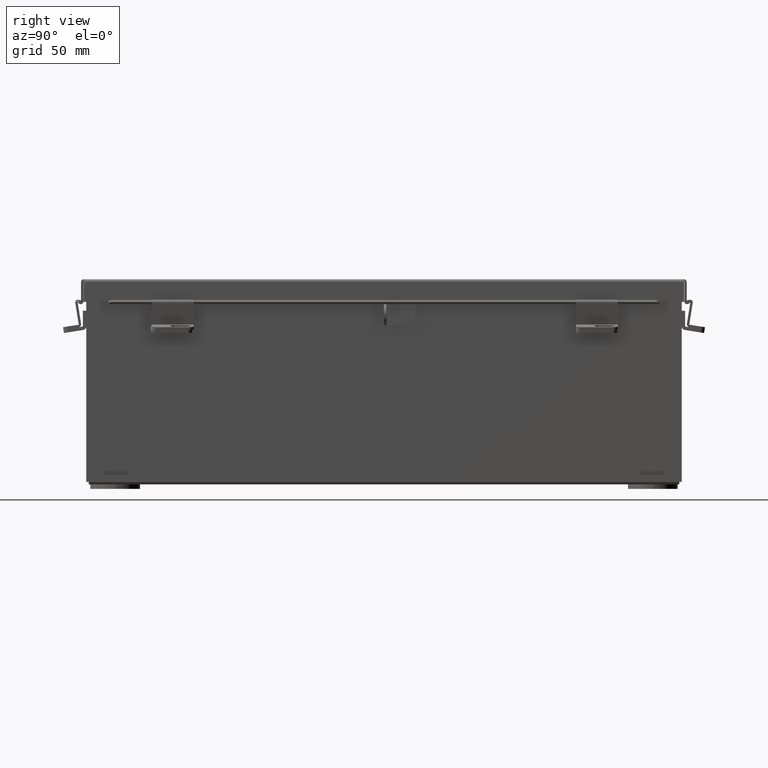
[diagram: clean part render]
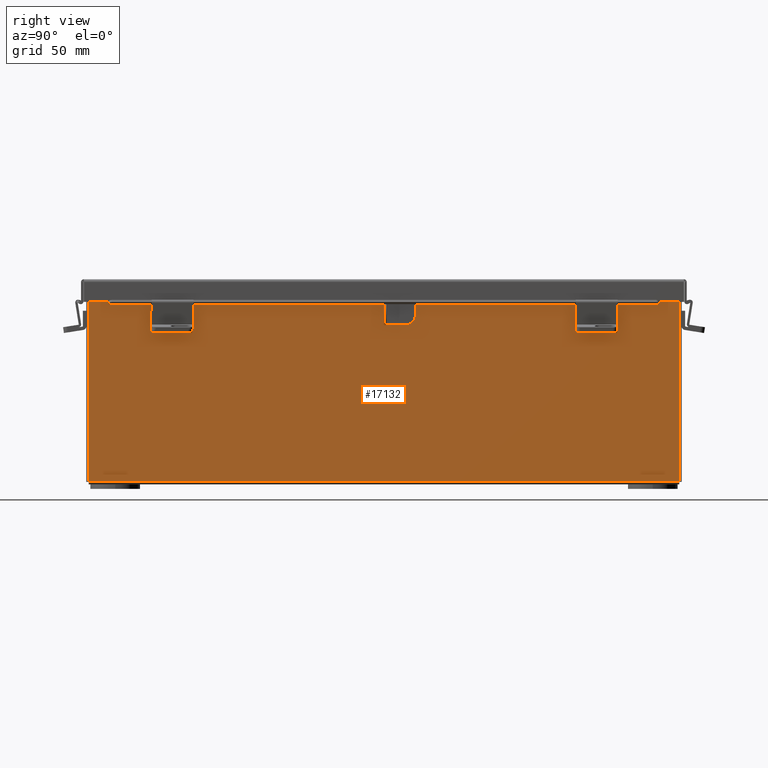
[diagram: same view with one face highlighted and labeled with its STEP entity id]
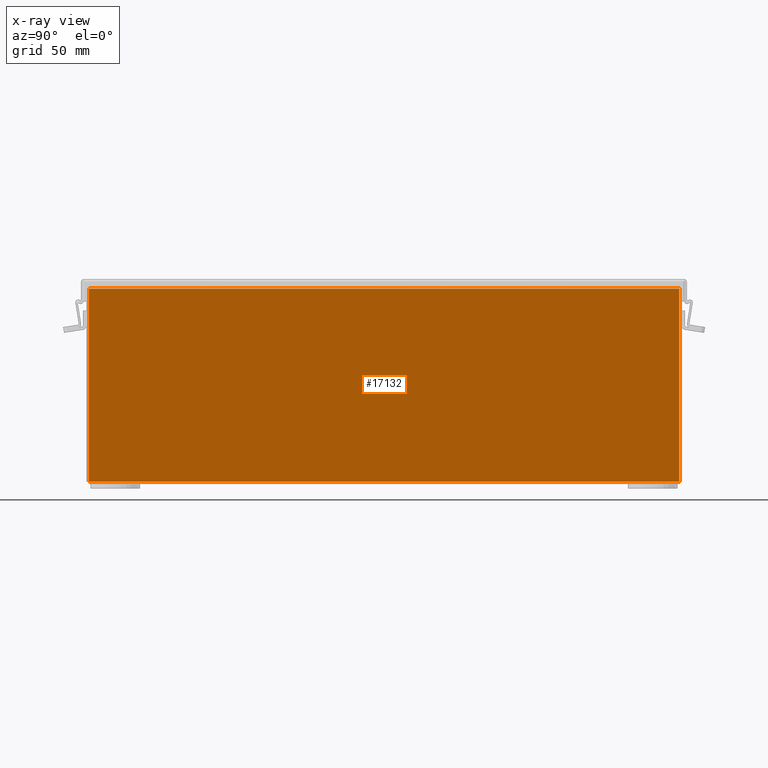
[diagram: x-ray of the same camera — body ghosted, the highlighted face saturated]
A machine part, right view. The second image highlights one B-rep face of the part: STEP entity #17132.
The next image is the same camera in x-ray: the body ghosted, the highlighted face saturated — about 0% of this face is hidden behind the body in this view.
In plain terms, the highlighted planar face has unit normal (-1, 0, 0).
Its self-contained STEP definition (entity closure, byte-faithful):
#1035 = DIRECTION ( 'NONE',  ( -0.0000000000000000000, -1.000000000000000000, -0.0000000000000000000 ) ) ;
#1074 = AXIS2_PLACEMENT_3D ( 'NONE', #4867, #13819, #4996 ) ;
#1150 = VECTOR ( 'NONE', #10063, 39.37007874015748100 ) ;
#1244 = CARTESIAN_POINT ( 'NONE',  ( 3.000000000000001800, -8.925300000000001800, 0.01299999999999984300 ) ) ;
#1616 = LINE ( 'NONE', #1244, #1150 ) ;
#2059 = PLANE ( 'NONE',  #1074 ) ;
#2162 = EDGE_CURVE ( 'NONE', #15712, #8384, #12043, .T. ) ;
#2936 = CARTESIAN_POINT ( 'NONE',  ( 3.000000000000022200, 8.925299999999991100, 5.837600000000000100 ) ) ;
#4306 = CARTESIAN_POINT ( 'NONE',  ( 3.000000000000001800, -8.925300000000001800, 0.01299999999999984300 ) ) ;
#4630 = DIRECTION ( 'NONE',  ( 3.455316574900959400E-015, -1.867738689135653700E-016, 1.000000000000000000 ) ) ;
#4799 = CARTESIAN_POINT ( 'NONE',  ( 3.000000000000001800, -8.925300000000001800, -1.062859610035002400E-014 ) ) ;
#4867 = CARTESIAN_POINT ( 'NONE',  ( 3.000000000000001800, 0.0000000000000000000, -1.062859610035002400E-014 ) ) ;
#4996 = DIRECTION ( 'NONE',  ( 3.455316574900958600E-015, 0.0000000000000000000, 1.000000000000000000 ) ) ;
#5192 = LINE ( 'NONE', #13441, #9080 ) ;
#5386 = ORIENTED_EDGE ( 'NONE', *, *, #11179, .T. ) ;
#5790 = CARTESIAN_POINT ( 'NONE',  ( 3.000000000000001800, 8.925300000000000000, 0.01299999999999984300 ) ) ;
#6215 = EDGE_LOOP ( 'NONE', ( #7598, #10982, #10054, #5386 ) ) ;
#7598 = ORIENTED_EDGE ( 'NONE', *, *, #2162, .T. ) ;
#8384 = VERTEX_POINT ( 'NONE', #13092 ) ;
#9080 = VECTOR ( 'NONE', #4630, 39.37007874015748100 ) ;
#9773 = CARTESIAN_POINT ( 'NONE',  ( 3.000000000000022200, 8.925299999999996500, 5.837600000000000100 ) ) ;
#10054 = ORIENTED_EDGE ( 'NONE', *, *, #16274, .F. ) ;
#10063 = DIRECTION ( 'NONE',  ( -0.0000000000000000000, -1.000000000000000000, -0.0000000000000000000 ) ) ;
#10982 = ORIENTED_EDGE ( 'NONE', *, *, #17044, .T. ) ;
#11179 = EDGE_CURVE ( 'NONE', #18109, #15712, #5192, .T. ) ;
#12043 = LINE ( 'NONE', #9773, #12959 ) ;
#12597 = LINE ( 'NONE', #4799, #15127 ) ;
#12959 = VECTOR ( 'NONE', #1035, 39.37007874015748100 ) ;
#13092 = CARTESIAN_POINT ( 'NONE',  ( 3.000000000000022200, -8.925299999999998200, 5.837600000000000100 ) ) ;
#13441 = CARTESIAN_POINT ( 'NONE',  ( 3.000000000000001800, 8.925300000000000000, -8.963876229210862900E-015 ) ) ;
#13635 = DIRECTION ( 'NONE',  ( -3.455316574900959400E-015, 0.0000000000000000000, -1.000000000000000000 ) ) ;
#13819 = DIRECTION ( 'NONE',  ( -1.000000000000000000, 0.0000000000000000000, 3.455316574900958600E-015 ) ) ;
#14218 = FACE_OUTER_BOUND ( 'NONE', #6215, .T. ) ;
#15127 = VECTOR ( 'NONE', #13635, 39.37007874015748100 ) ;
#15712 = VERTEX_POINT ( 'NONE', #2936 ) ;
#16274 = EDGE_CURVE ( 'NONE', #18109, #16326, #1616, .T. ) ;
#16326 = VERTEX_POINT ( 'NONE', #4306 ) ;
#17044 = EDGE_CURVE ( 'NONE', #8384, #16326, #12597, .T. ) ;
#17132 = ADVANCED_FACE ( 'NONE', ( #14218 ), #2059, .F. ) ;
#18109 = VERTEX_POINT ( 'NONE', #5790 ) ;